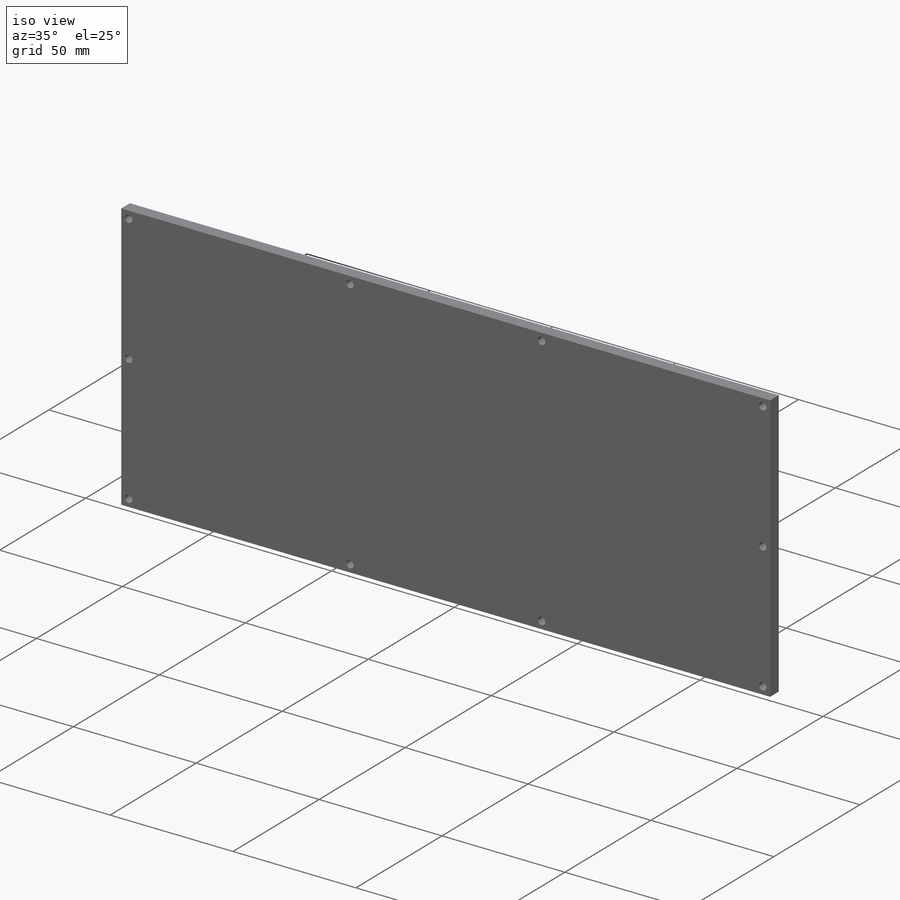
[diagram: iso view]
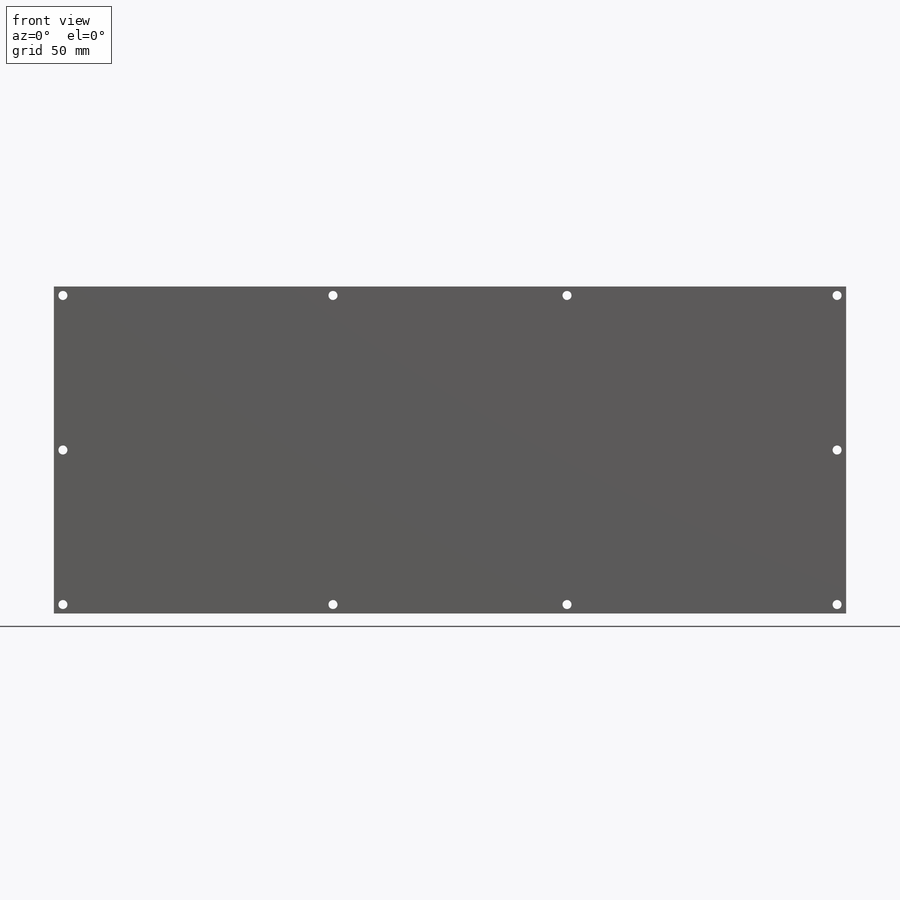
[diagram: front view]
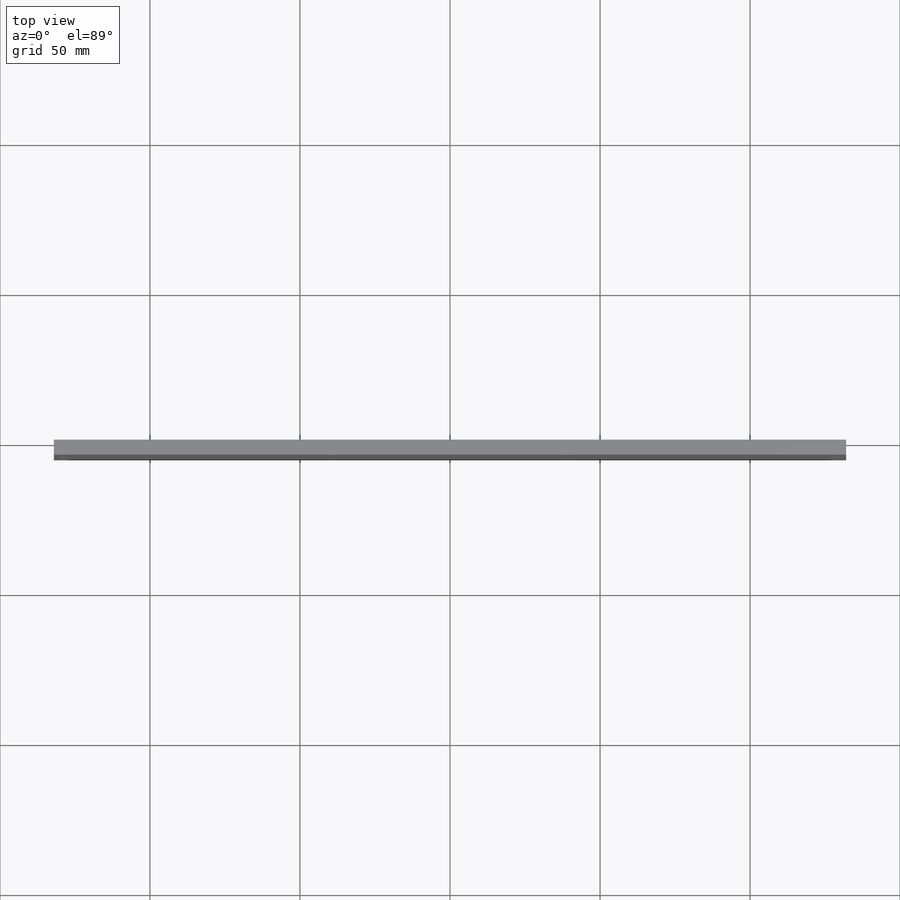
[diagram: top view]
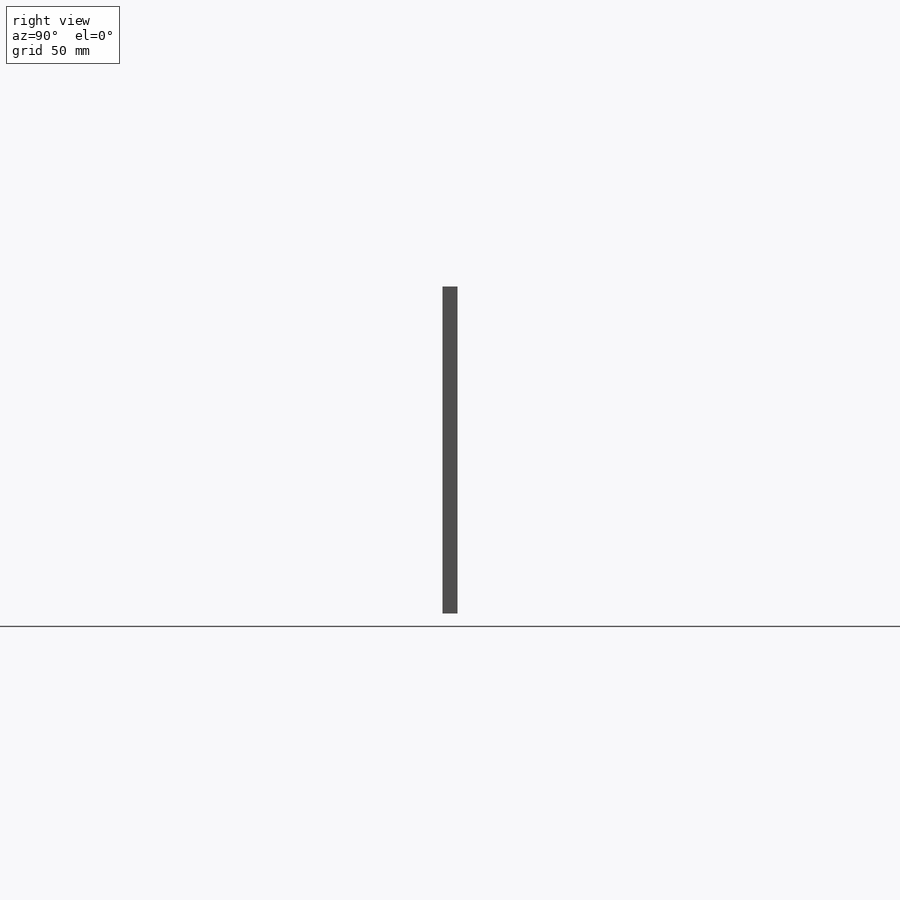
[diagram: right view]
SOLIDWORKS PART (.sldprt)
format: sldprt  version: not decoded by parser v0  size: 256,512 bytes
history: native  units: mm
features: sketch x5, cut_extrude x2, material x1, extrude x1, fillet x1, hole x1 (+12 scaffold rows collapsed)
feature tree (23):
  scaffold x12  (default folders/planes/origin — collapsed)
  material  "2014 Alloy"
  sketch  "Sketch1"  dims[c1.D1=~31.329616mm c1.D2=~52.401128mm c2.D1=264.0mm c2.D2=109.0mm]
  extrude  "Boss-Extrude1"  Depth=5mm
  sketch  "Sketch2"  dims[c1.D5=5.0mm c1.D1=6.0mm c1.D2=6.0mm c1.D3=6.0mm c1.D4=257.0mm c2.D4=~179.897922deg c3.D4=6.0mm c3.D6=1.0mm c3.D7=1.0mm]
  cut_extrude  "Cut-Extrude1"  Depth=1mm
  sketch  "Sketch3"  dims[D1=15.0mm D2=15.0mm D3=15.0mm D4=15.0mm D5=10.0mm]
  cut_extrude  "Cut-Extrude2"  Depth=4mm
  fillet  "Fillet1"  Radius=3mm
  hole  "Ø3.0mm Dowel Hole1"  Diameter=3mm Depth=15mm
  sketch  "Sketch5"  dims[D1=3.0mm D2=3.0mm D3=3.0mm D4=3.0mm D5=90.0mm D6=90.0mm]
  sketch  "Sketch4"  dims[hole-wizard template sketch: 50 standard entries collapsed; hole parameters above]
decode coverage: 10 of 10 modeling features carry decoded parameters
note: ~ marks probable driven/reference dimensions
note: suppression state not decoded; provenance and decode notes live in map.json
